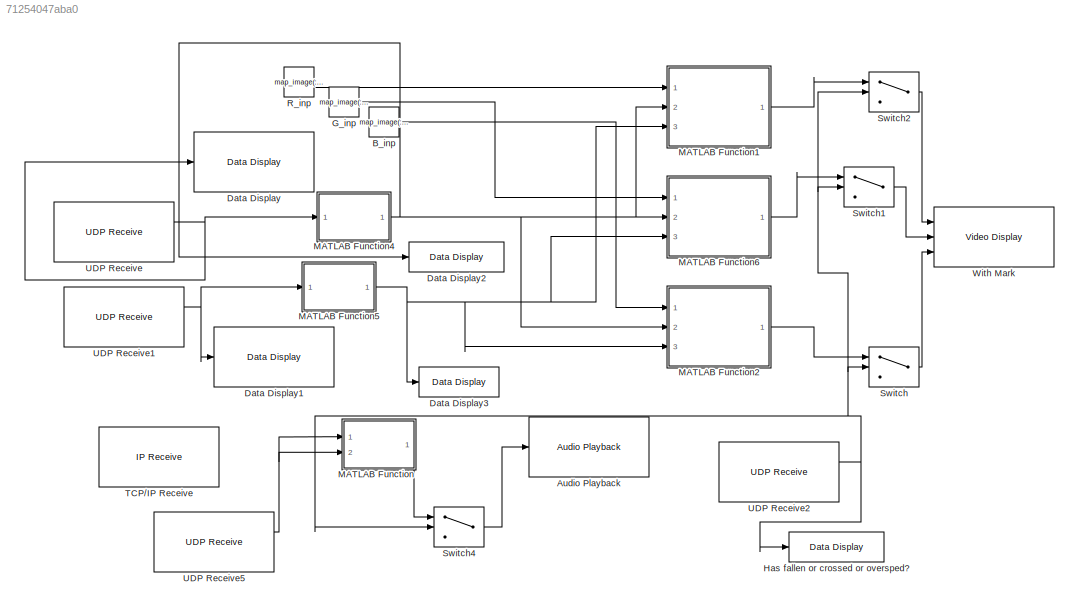
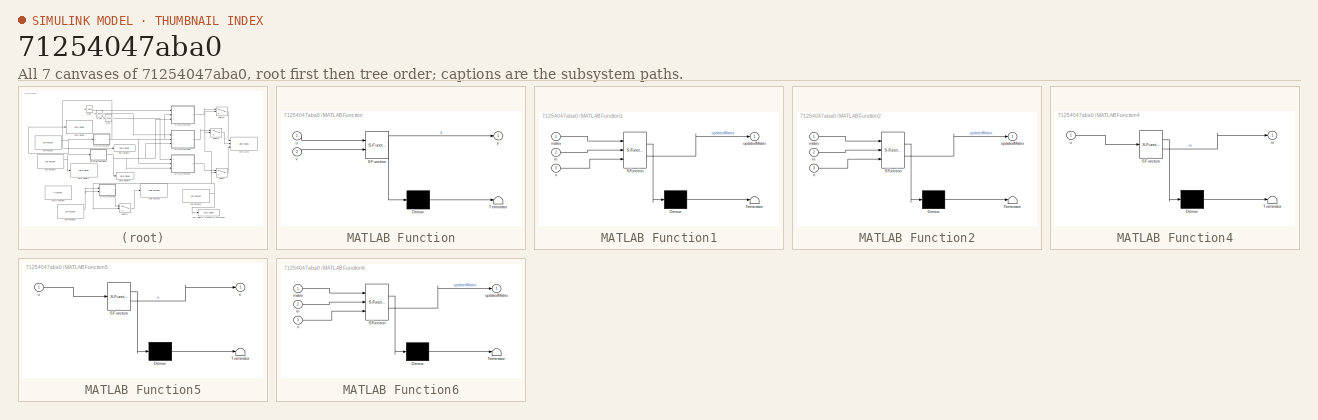
[diagram: thumbnail index - all 7 canvases of the model, root first then tree order]
MODEL slx_71254047aba0
KIND model
CONFIG AbsTol = auto
CONFIG EnableMultiTasking = off
CONFIG FixedStep = auto
CONFIG MaxStep = auto
CONFIG MinStep = auto
CONFIG RelTol = 1e-3
CONFIG SampleTimeConstraint = Unconstrained
CONFIG SolverName = FixedStepAuto
CONFIG StartTime = 0.0
CONFIG StopTime = inf
BLOCK [Reference] Audio Playback  REF=androidaudiovideolib/Audio Playback
  Ports = [1]
  SourceBlock = androidaudiovideolib/Audio Playback
  SourceProductBaseCode = ANDROID
  SourceType = codertarget.internal.androidAudioPlayback
BLOCK [Constant] B_inp
  OutDataTypeStr = uint8
  Value = map_image(:,:,3)
  VectorParams1D = off
BLOCK [Reference] Data Display  REF=androiduilib/Data Display
  Ports = [1]
  SourceBlock = androiduilib/Data Display
  SourceProductBaseCode = ANDROID
  SourceType = codertarget.internal.androidDataDisplay
BLOCK [Reference] Data Display1  REF=androiduilib/Data Display
  Ports = [1]
  SourceBlock = androiduilib/Data Display
  SourceProductBaseCode = ANDROID
  SourceType = codertarget.internal.androidDataDisplay
BLOCK [Reference] Data Display2  REF=androiduilib/Data Display
  Ports = [1]
  SourceBlock = androiduilib/Data Display
  SourceProductBaseCode = ANDROID
  SourceType = codertarget.internal.androidDataDisplay
BLOCK [Reference] Data Display3  REF=androiduilib/Data Display
  Ports = [1]
  SourceBlock = androiduilib/Data Display
  SourceProductBaseCode = ANDROID
  SourceType = codertarget.internal.androidDataDisplay
BLOCK [Constant] G_inp
  OutDataTypeStr = uint8
  Value = map_image(:,:,2)
  VectorParams1D = off
BLOCK [Reference] Has fallen or crossed or oversped?  REF=androiduilib/Data Display
  Ports = [1]
  SourceBlock = androiduilib/Data Display
  SourceProductBaseCode = ANDROID
  SourceType = codertarget.internal.androidDataDisplay
BLOCK [SubSystem] MATLAB Function
  ErrorFcn = Stateflow.Translate.translate
  PermitHierarchicalResolution = ExplicitOnly
  Ports = [2, 1]
  RequestExecContextInheritance = off
  SFBlockType = MATLAB Function
  TreatAsAtomicUnit = on
BLOCK [Demux] MATLAB Function/ Demux 
  Outputs = 1
  Ports = [1, 1]
BLOCK [S-Function] MATLAB Function/ SFunction 
  EnableBusSupport = on
  FunctionName = sf_sfun
  PortCounts = [2 2]
  Ports = [2, 2]
  SFcnIsStateOwnerBlock = off
  SFunctionDeploymentMode = off
  Tag = Stateflow S-Function 5
BLOCK [Terminator] MATLAB Function/ Terminator 
BLOCK [Inport] MATLAB Function/u
BLOCK [Inport] MATLAB Function/v
  Port = 2
BLOCK [Outport] MATLAB Function/y
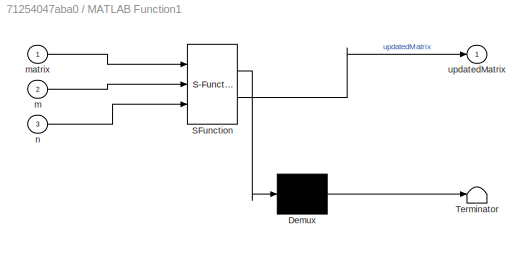
BLOCK [SubSystem] MATLAB Function1
  ErrorFcn = Stateflow.Translate.translate
  PermitHierarchicalResolution = ExplicitOnly
  Ports = [3, 1]
  RequestExecContextInheritance = off
  SFBlockType = MATLAB Function
  TreatAsAtomicUnit = on
BLOCK [Demux] MATLAB Function1/ Demux 
  Outputs = 1
  Ports = [1, 1]
BLOCK [S-Function] MATLAB Function1/ SFunction 
  EnableBusSupport = on
  FunctionName = sf_sfun
  PortCounts = [3 2]
  Ports = [3, 2]
  SFcnIsStateOwnerBlock = off
  SFunctionDeploymentMode = off
  Tag = Stateflow S-Function 1
BLOCK [Terminator] MATLAB Function1/ Terminator 
BLOCK [Inport] MATLAB Function1/m
  Port = 2
BLOCK [Inport] MATLAB Function1/matrix
BLOCK [Inport] MATLAB Function1/n
  Port = 3
BLOCK [Outport] MATLAB Function1/updatedMatrix
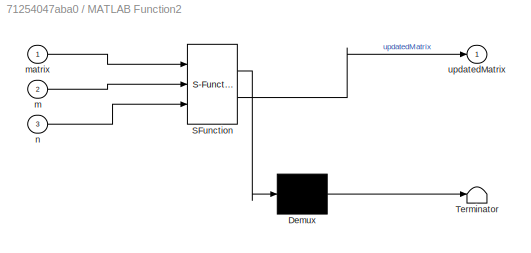
BLOCK [SubSystem] MATLAB Function2
  ErrorFcn = Stateflow.Translate.translate
  PermitHierarchicalResolution = ExplicitOnly
  Ports = [3, 1]
  RequestExecContextInheritance = off
  SFBlockType = MATLAB Function
  TreatAsAtomicUnit = on
BLOCK [Demux] MATLAB Function2/ Demux 
  Outputs = 1
  Ports = [1, 1]
BLOCK [S-Function] MATLAB Function2/ SFunction 
  EnableBusSupport = on
  FunctionName = sf_sfun
  PortCounts = [3 2]
  Ports = [3, 2]
  SFcnIsStateOwnerBlock = off
  SFunctionDeploymentMode = off
  Tag = Stateflow S-Function 2
BLOCK [Terminator] MATLAB Function2/ Terminator 
BLOCK [Inport] MATLAB Function2/m
  Port = 2
BLOCK [Inport] MATLAB Function2/matrix
BLOCK [Inport] MATLAB Function2/n
  Port = 3
BLOCK [Outport] MATLAB Function2/updatedMatrix
BLOCK [SubSystem] MATLAB Function4
  ErrorFcn = Stateflow.Translate.translate
  PermitHierarchicalResolution = ExplicitOnly
  Ports = [1, 1]
  RequestExecContextInheritance = off
  SFBlockType = MATLAB Function
  TreatAsAtomicUnit = on
BLOCK [Demux] MATLAB Function4/ Demux 
  Outputs = 1
  Ports = [1, 1]
BLOCK [S-Function] MATLAB Function4/ SFunction 
  EnableBusSupport = on
  FunctionName = sf_sfun
  PortCounts = [1 2]
  Ports = [1, 2]
  SFcnIsStateOwnerBlock = off
  SFunctionDeploymentMode = off
  Tag = Stateflow S-Function 3
BLOCK [Terminator] MATLAB Function4/ Terminator 
BLOCK [Outport] MATLAB Function4/m
BLOCK [Inport] MATLAB Function4/u
BLOCK [SubSystem] MATLAB Function5
  ErrorFcn = Stateflow.Translate.translate
  PermitHierarchicalResolution = ExplicitOnly
  Ports = [1, 1]
  RequestExecContextInheritance = off
  SFBlockType = MATLAB Function
  TreatAsAtomicUnit = on
BLOCK [Demux] MATLAB Function5/ Demux 
  Outputs = 1
  Ports = [1, 1]
BLOCK [S-Function] MATLAB Function5/ SFunction 
  EnableBusSupport = on
  FunctionName = sf_sfun
  PortCounts = [1 2]
  Ports = [1, 2]
  SFcnIsStateOwnerBlock = off
  SFunctionDeploymentMode = off
  Tag = Stateflow S-Function 4
BLOCK [Terminator] MATLAB Function5/ Terminator 
BLOCK [Outport] MATLAB Function5/n
BLOCK [Inport] MATLAB Function5/u
BLOCK [SubSystem] MATLAB Function6
  ErrorFcn = Stateflow.Translate.translate
  PermitHierarchicalResolution = ExplicitOnly
  Ports = [3, 1]
  RequestExecContextInheritance = off
  SFBlockType = MATLAB Function
  TreatAsAtomicUnit = on
BLOCK [Demux] MATLAB Function6/ Demux 
  Outputs = 1
  Ports = [1, 1]
BLOCK [S-Function] MATLAB Function6/ SFunction 
  EnableBusSupport = on
  FunctionName = sf_sfun
  PortCounts = [3 2]
  Ports = [3, 2]
  SFcnIsStateOwnerBlock = off
  SFunctionDeploymentMode = off
  Tag = Stateflow S-Function 7
BLOCK [Terminator] MATLAB Function6/ Terminator 
BLOCK [Inport] MATLAB Function6/m
  Port = 2
BLOCK [Inport] MATLAB Function6/matrix
BLOCK [Inport] MATLAB Function6/n
  Port = 3
BLOCK [Outport] MATLAB Function6/updatedMatrix
BLOCK [Constant] R_inp
  OutDataTypeStr = uint8
  Value = map_image(:,:,1)
  VectorParams1D = off
BLOCK [Switch] Switch
  Criteria = u2 > Threshold
  InputSameDT = off
  SaturateOnIntegerOverflow = off
BLOCK [Switch] Switch1
  Criteria = u2 > Threshold
  InputSameDT = off
  SaturateOnIntegerOverflow = off
BLOCK [Switch] Switch2
  Criteria = u2 > Threshold
  InputSameDT = off
  SaturateOnIntegerOverflow = off
BLOCK [Switch] Switch4
  Criteria = u2 > Threshold
  InputSameDT = off
  OutDataTypeStr = int16
  SaturateOnIntegerOverflow = off
BLOCK [Reference] TCP//IP Receive  REF=androidcommunicationlib/TCP//IP Receive
  Commented = on
  Ports = [0, 2]
  SourceBlock = androidcommunicationlib/TCP//IP Receive
  SourceProductBaseCode = ANDROID
  SourceType = codertarget.internal.androidTCPReceive
BLOCK [Reference] UDP Receive  REF=androidcommunicationlib/UDP Receive
  Ports = [0, 2]
  SourceBlock = androidcommunicationlib/UDP Receive
  SourceProductBaseCode = ANDROID
  SourceType = UDP Receive
BLOCK [Reference] UDP Receive1  REF=androidcommunicationlib/UDP Receive
  Ports = [0, 2]
  SourceBlock = androidcommunicationlib/UDP Receive
  SourceProductBaseCode = ANDROID
  SourceType = UDP Receive
BLOCK [Reference] UDP Receive2  REF=androidcommunicationlib/UDP Receive
  Ports = [0, 2]
  SourceBlock = androidcommunicationlib/UDP Receive
  SourceProductBaseCode = ANDROID
  SourceType = UDP Receive
BLOCK [Reference] UDP Receive5  REF=androidcommunicationlib/UDP Receive
  Ports = [0, 2]
  SourceBlock = androidcommunicationlib/UDP Receive
  SourceProductBaseCode = ANDROID
  SourceType = UDP Receive
BLOCK [Reference] With Mark  REF=androidaudiovideolib/Video Display
  Ports = [3]
  SourceBlock = androidaudiovideolib/Video Display
  SourceProductBaseCode = ANDROID
  SourceType = codertarget.internal.androidVideoDisplay
LINE B_inp:1 -> MATLAB Function2:1
LINE G_inp:1 -> MATLAB Function6:1
LINE MATLAB Function1:1 -> Switch2:1
LINE MATLAB Function2:1 -> Switch:1
NET MATLAB Function4:1 -> Data Display2:1, MATLAB Function1:2, MATLAB Function2:2, MATLAB Function6:2
NET MATLAB Function5:1 -> Data Display3:1, MATLAB Function1:3, MATLAB Function2:3, MATLAB Function6:3
LINE MATLAB Function6:1 -> Switch1:1
LINE MATLAB Function:1 -> Switch4:1
LINE R_inp:1 -> MATLAB Function1:1
LINE Switch1:1 -> With Mark:2
LINE Switch2:1 -> With Mark:1
LINE Switch4:1 -> Audio Playback:1
LINE Switch:1 -> With Mark:3
NET UDP Receive1:1 -> Data Display1:1, MATLAB Function5:1
NET UDP Receive2:1 -> Has fallen or crossed or oversped?:1, Switch1:2, Switch2:2, Switch4:2, Switch:2
NET UDP Receive5:1 -> MATLAB Function:1, MATLAB Function:2
NET UDP Receive:1 -> Data Display:1, MATLAB Function4:1
note: NET lines group one-source signal fan-out (src -> all destinations, sorted); 1:1 wires keep LINE
CHART MATLAB Function1 states=1 transitions=1
  STATE_LABEL 'eML_blk_kernel()'
  STATE_LABEL 'SCRIPT:\nfunction updatedMatrix = replaceRegion(matrix, m, n)\n    [rows, cols] = size(matrix);\n    updatedMatrix = matrix;\n\n\n    rowStart = m - 7;\n    rowEnd = m + 7;\n    colStart = n - 7;\n    colEnd = n + 7;\n\n    rowStart = max(1, rowStart);\n    rowEnd = min(rows, rowEnd);\n    colStart = max(1, colStart);\n    colEnd = min(cols, colEnd);\n\n    updatedMatrix(rowStart:rowEnd, colStart:colEnd) = 255; \n...<+5ch>'
CHART MATLAB Function2 states=1 transitions=1
  STATE_LABEL 'eML_blk_kernel()'
  STATE_LABEL 'SCRIPT:\nfunction updatedMatrix = replaceRegion(matrix, m, n)\n    [rows, cols] = size(matrix);\n    updatedMatrix = matrix;\n\n\n    rowStart = m - 7;\n    rowEnd = m + 7;\n    colStart = n - 7;\n    colEnd = n + 7;\n\n    rowStart = max(1, rowStart);\n    rowEnd = min(rows, rowEnd);\n    colStart = max(1, colStart);\n    colEnd = min(cols, colEnd);\n\n    updatedMatrix(rowStart:rowEnd, colStart:colEnd) = 0; \n\ne...<+3ch>'
CHART MATLAB Function4 states=1 transitions=1
  STATE_LABEL 'eML_blk_kernel()'
  STATE_LABEL 'SCRIPT:\nfunction m = fcn(u)\n    clat=5.513888888888889e-6;\n    md = (23.21385-u)/clat;\n    m = int16(md);\n'
CHART MATLAB Function5 states=1 transitions=1
  STATE_LABEL 'eML_blk_kernel()'
  STATE_LABEL 'SCRIPT:\nfunction n = fcn(u)\n    clong= 3.42890625e-6;\n    nd = (72.68525-u)/clong;\n    n = int16(nd);\n'
CHART MATLAB Function states=1 transitions=1
  STATE_LABEL 'eML_blk_kernel()'
  STATE_LABEL 'SCRIPT:\nfunction y = fcn(u,v)\n    y=[u,v];\n\nend\n'
CHART MATLAB Function6 states=1 transitions=1
  STATE_LABEL 'eML_blk_kernel()'
  STATE_LABEL 'SCRIPT:\nfunction updatedMatrix = replaceRegion(matrix, m, n)\n    [rows, cols] = size(matrix);\n    updatedMatrix = matrix;\n\n\n    rowStart = m - 7;\n    rowEnd = m + 7;\n    colStart = n - 7;\n    colEnd = n + 7;\n\n    rowStart = max(1, rowStart);\n    rowEnd = min(rows, rowEnd);\n    colStart = max(1, colStart);\n    colEnd = min(cols, colEnd);\n\n    updatedMatrix(rowStart:rowEnd, colStart:colEnd) = 0; \n\ne...<+3ch>'
CHART  states=0 transitions=0
CHART  states=0 transitions=0
CHART  states=0 transitions=0
CHART  states=0 transitions=0
CHART  states=0 transitions=0
CHART  states=0 transitions=0
